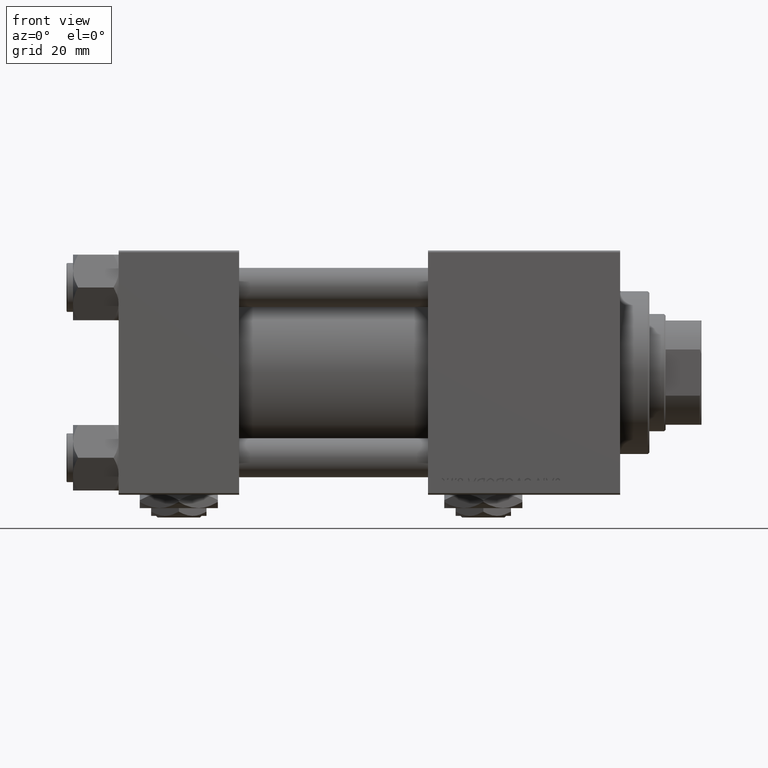
[diagram: clean part render]
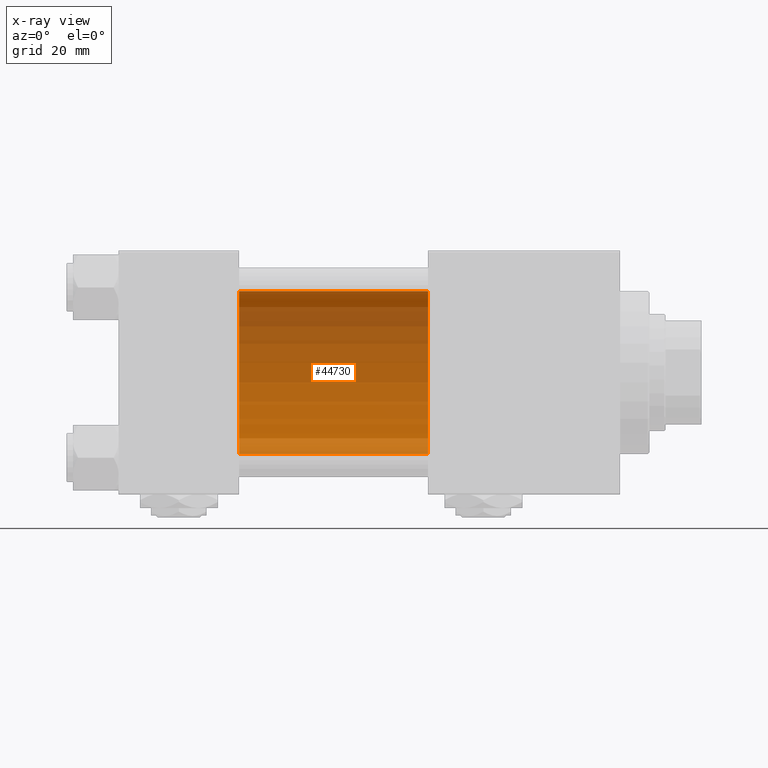
[diagram: x-ray — body ghosted, one internal face saturated and labeled with its STEP entity id]
A machine part, front view, then the same camera in x-ray: the body is ghosted and one INTERNAL B-rep face — a face not visible from any outside direction — is saturated and labeled: STEP entity #44730.
In plain terms, the highlighted cylindrical surface (partial cylindrical patch) has radius 25 mm, axis along (-1, -0, -0).
Its self-contained STEP definition (entity closure, byte-faithful):
#4797 = CARTESIAN_POINT ( 'NONE',  ( 95.00000000000000000, -2.602085213965210642E-15, 0.000000000000000000 ) ) ;
#5065 = DIRECTION ( 'NONE',  ( 1.000000000000000000, 0.000000000000000000, 0.000000000000000000 ) ) ;
#5612 = VERTEX_POINT ( 'NONE', #15478 ) ;
#6874 = CARTESIAN_POINT ( 'NONE',  ( 37.00000000000000000, -2.602085213965210642E-15, 0.000000000000000000 ) ) ;
#8746 = EDGE_CURVE ( 'NONE', #10376, #14642, #24724, .T. ) ;
#8850 = DIRECTION ( 'NONE',  ( -1.000000000000000000, -0.000000000000000000, -0.000000000000000000 ) ) ;
#10120 = CARTESIAN_POINT ( 'NONE',  ( 37.00000000000000000, -2.602085213965210642E-15, 25.00000000000000000 ) ) ;
#10376 = VERTEX_POINT ( 'NONE', #39184 ) ;
#10584 = DIRECTION ( 'NONE',  ( 0.000000000000000000, 0.000000000000000000, -1.000000000000000000 ) ) ;
#14233 = VECTOR ( 'NONE', #34648, 1000.000000000000000 ) ;
#14642 = VERTEX_POINT ( 'NONE', #35669 ) ;
#15478 = CARTESIAN_POINT ( 'NONE',  ( 95.00000000000000000, -2.602085213965210642E-15, 25.00000000000000000 ) ) ;
#16982 = DIRECTION ( 'NONE',  ( 0.000000000000000000, 0.000000000000000000, -1.000000000000000000 ) ) ;
#18594 = EDGE_LOOP ( 'NONE', ( #49812, #32119, #32810, #25020 ) ) ;
#18746 = FACE_OUTER_BOUND ( 'NONE', #18594, .T. ) ;
#19896 = VERTEX_POINT ( 'NONE', #10120 ) ;
#20241 = EDGE_CURVE ( 'NONE', #14642, #19896, #44241, .T. ) ;
#21470 = LINE ( 'NONE', #30448, #14233 ) ;
#24724 = LINE ( 'NONE', #45017, #50705 ) ;
#25020 = ORIENTED_EDGE ( 'NONE', *, *, #20241, .F. ) ;
#26945 = CYLINDRICAL_SURFACE ( 'NONE', #48860, 25.00000000000000000 ) ;
#27027 = EDGE_CURVE ( 'NONE', #10376, #5612, #30679, .T. ) ;
#27423 = AXIS2_PLACEMENT_3D ( 'NONE', #6874, #50203, #10584 ) ;
#30448 = CARTESIAN_POINT ( 'NONE',  ( 95.00000000000000000, -2.602085213965210642E-15, 25.00000000000000000 ) ) ;
#30679 = CIRCLE ( 'NONE', #50876, 25.00000000000000000 ) ;
#32119 = ORIENTED_EDGE ( 'NONE', *, *, #27027, .T. ) ;
#32810 = ORIENTED_EDGE ( 'NONE', *, *, #39678, .T. ) ;
#34334 = CARTESIAN_POINT ( 'NONE',  ( 95.00000000000000000, -2.602085213965210642E-15, 0.000000000000000000 ) ) ;
#34648 = DIRECTION ( 'NONE',  ( -1.000000000000000000, -0.000000000000000000, -0.000000000000000000 ) ) ;
#35669 = CARTESIAN_POINT ( 'NONE',  ( 37.00000000000000000, 4.595317839031718093E-16, -25.00000000000000000 ) ) ;
#39184 = CARTESIAN_POINT ( 'NONE',  ( 95.00000000000000000, 4.595317839031718093E-16, -25.00000000000000000 ) ) ;
#39678 = EDGE_CURVE ( 'NONE', #5612, #19896, #21470, .T. ) ;
#42502 = DIRECTION ( 'NONE',  ( -1.000000000000000000, -0.000000000000000000, -0.000000000000000000 ) ) ;
#44241 = CIRCLE ( 'NONE', #27423, 25.00000000000000000 ) ;
#44730 = ADVANCED_FACE ( 'NONE', ( #18746 ), #26945, .F. ) ;
#45017 = CARTESIAN_POINT ( 'NONE',  ( 95.00000000000000000, 4.595317839031718093E-16, -25.00000000000000000 ) ) ;
#46971 = DIRECTION ( 'NONE',  ( 0.000000000000000000, 0.000000000000000000, 1.000000000000000000 ) ) ;
#48860 = AXIS2_PLACEMENT_3D ( 'NONE', #34334, #42502, #46971 ) ;
#49812 = ORIENTED_EDGE ( 'NONE', *, *, #8746, .F. ) ;
#50203 = DIRECTION ( 'NONE',  ( 1.000000000000000000, 0.000000000000000000, 0.000000000000000000 ) ) ;
#50705 = VECTOR ( 'NONE', #8850, 1000.000000000000000 ) ;
#50876 = AXIS2_PLACEMENT_3D ( 'NONE', #4797, #5065, #16982 ) ;